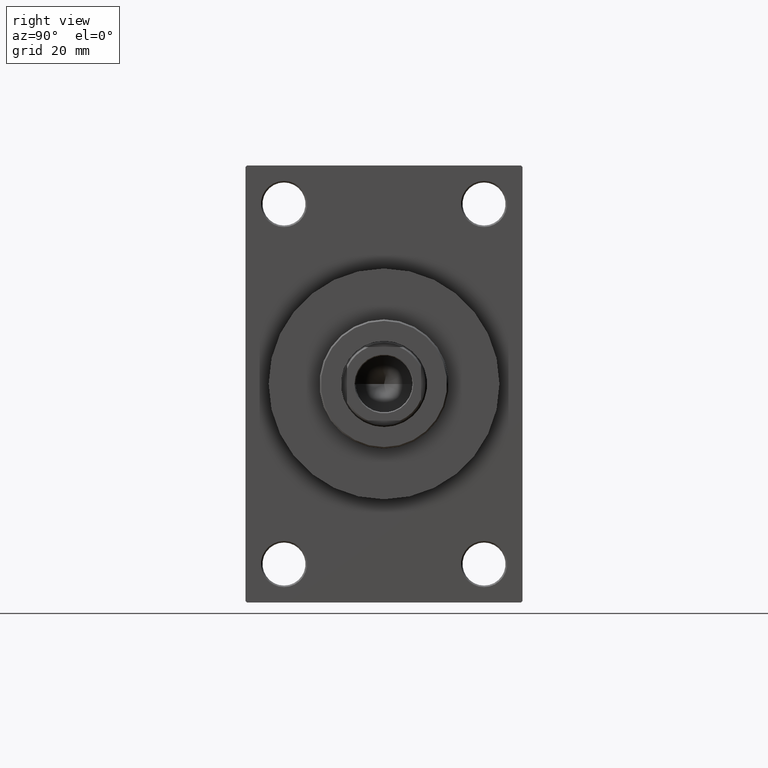
[diagram: clean part render]
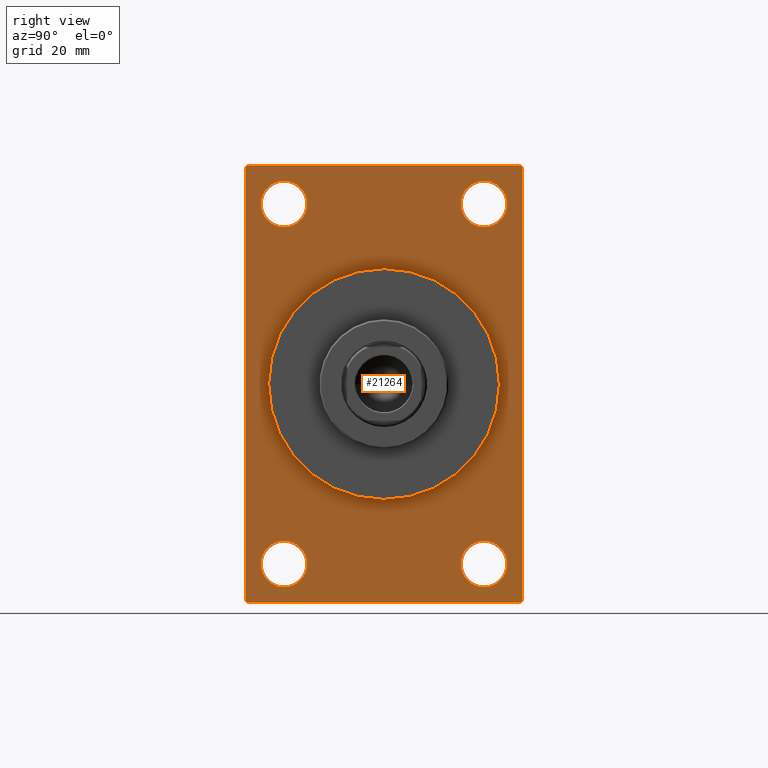
[diagram: same view with one face highlighted and labeled with its STEP entity id]
A machine part, right view. The second image highlights one B-rep face of the part: STEP entity #21264.
In plain terms, the highlighted planar face has unit normal (-1, 0, 0).
Its self-contained STEP definition (entity closure, byte-faithful):
#197 = CARTESIAN_POINT ( 'NONE',  ( 124.9999999999999858, 32.50000000000000711, 51.00000000000001421 ) ) ;
#377 = DIRECTION ( 'NONE',  ( -1.000000000000000000, 0.000000000000000000, -0.000000000000000000 ) ) ;
#441 = EDGE_LOOP ( 'NONE', ( #15976, #28435 ) ) ;
#1113 = CARTESIAN_POINT ( 'NONE',  ( 124.9999999999999858, -32.50000000000000000, 66.00000000000000000 ) ) ;
#1210 = DIRECTION ( 'NONE',  ( 0.000000000000000000, 0.7071067811865573427, -0.7071067811865378028 ) ) ;
#1604 = EDGE_CURVE ( 'NONE', #3583, #33139, #2162, .T. ) ;
#1955 = VERTEX_POINT ( 'NONE', #34677 ) ;
#2007 = CIRCLE ( 'NONE', #21795, 7.500000000000007105 ) ;
#2046 = EDGE_CURVE ( 'NONE', #37515, #15705, #17482, .T. ) ;
#2162 = LINE ( 'NONE', #42720, #20921 ) ;
#3372 = CARTESIAN_POINT ( 'NONE',  ( 124.9999999999999858, -32.50000000000000000, -65.99999999999998579 ) ) ;
#3583 = VERTEX_POINT ( 'NONE', #25275 ) ;
#3589 = VERTEX_POINT ( 'NONE', #7106 ) ;
#3722 = CIRCLE ( 'NONE', #44132, 7.499999999999992895 ) ;
#4043 = ORIENTED_EDGE ( 'NONE', *, *, #46838, .T. ) ;
#4421 = DIRECTION ( 'NONE',  ( -1.000000000000000000, 0.000000000000000000, -0.000000000000000000 ) ) ;
#5530 = VERTEX_POINT ( 'NONE', #40240 ) ;
#5593 = EDGE_CURVE ( 'NONE', #37727, #5530, #36242, .T. ) ;
#5803 = AXIS2_PLACEMENT_3D ( 'NONE', #30036, #33621, #25121 ) ;
#5945 = FACE_BOUND ( 'NONE', #45765, .T. ) ;
#6018 = DIRECTION ( 'NONE',  ( 0.000000000000000000, 0.000000000000000000, 1.000000000000000000 ) ) ;
#6409 = CARTESIAN_POINT ( 'NONE',  ( 124.9999999999999858, 32.50000000000000711, -50.99999999999999289 ) ) ;
#6410 = DIRECTION ( 'NONE',  ( -0.000000000000000000, 0.000000000000000000, 1.000000000000000000 ) ) ;
#6806 = EDGE_CURVE ( 'NONE', #5530, #37727, #2007, .T. ) ;
#7106 = CARTESIAN_POINT ( 'NONE',  ( 124.9999999999999858, -44.49999999999994316, -71.00000000000000000 ) ) ;
#7279 = VECTOR ( 'NONE', #19058, 1000.000000000000000 ) ;
#7764 = DIRECTION ( 'NONE',  ( -1.000000000000000000, 0.000000000000000000, -0.000000000000000000 ) ) ;
#8214 = ORIENTED_EDGE ( 'NONE', *, *, #17413, .T. ) ;
#8886 = ORIENTED_EDGE ( 'NONE', *, *, #44666, .T. ) ;
#9460 = VECTOR ( 'NONE', #38734, 1000.000000000000000 ) ;
#10017 = DIRECTION ( 'NONE',  ( 0.000000000000000000, -1.000000000000000000, -1.541976423090495387E-16 ) ) ;
#10230 = DIRECTION ( 'NONE',  ( -1.000000000000000000, 0.000000000000000000, -0.000000000000000000 ) ) ;
#11376 = DIRECTION ( 'NONE',  ( 1.000000000000000000, 0.000000000000000000, 0.000000000000000000 ) ) ;
#12318 = EDGE_LOOP ( 'NONE', ( #27314, #30246 ) ) ;
#13615 = AXIS2_PLACEMENT_3D ( 'NONE', #44791, #11376, #15201 ) ;
#14144 = CIRCLE ( 'NONE', #46934, 7.499999999999992895 ) ;
#14183 = CIRCLE ( 'NONE', #5803, 7.499999999999992895 ) ;
#14393 = CIRCLE ( 'NONE', #13615, 37.50000000000000711 ) ;
#15174 = CIRCLE ( 'NONE', #35020, 7.500000000000000000 ) ;
#15201 = DIRECTION ( 'NONE',  ( 0.000000000000000000, 0.000000000000000000, -1.000000000000000000 ) ) ;
#15482 = LINE ( 'NONE', #35855, #7279 ) ;
#15705 = VERTEX_POINT ( 'NONE', #31392 ) ;
#15976 = ORIENTED_EDGE ( 'NONE', *, *, #41677, .T. ) ;
#16054 = VERTEX_POINT ( 'NONE', #40368 ) ;
#16440 = EDGE_CURVE ( 'NONE', #26503, #44443, #14393, .T. ) ;
#16458 = VERTEX_POINT ( 'NONE', #1113 ) ;
#17158 = CARTESIAN_POINT ( 'NONE',  ( 124.9999999999999858, 0.000000000000000000, 0.000000000000000000 ) ) ;
#17378 = CARTESIAN_POINT ( 'NONE',  ( 124.9999999999999858, 32.50000000000000711, 66.00000000000000000 ) ) ;
#17413 = EDGE_CURVE ( 'NONE', #39822, #29190, #15174, .T. ) ;
#17482 = LINE ( 'NONE', #39197, #9460 ) ;
#17558 = ORIENTED_EDGE ( 'NONE', *, *, #44482, .T. ) ;
#17964 = EDGE_CURVE ( 'NONE', #1955, #16458, #3722, .T. ) ;
#18254 = ORIENTED_EDGE ( 'NONE', *, *, #6806, .T. ) ;
#18715 = DIRECTION ( 'NONE',  ( 0.000000000000000000, -4.886545002751570165E-17, -1.000000000000000000 ) ) ;
#18754 = DIRECTION ( 'NONE',  ( 0.000000000000000000, 0.000000000000000000, 1.000000000000000000 ) ) ;
#18842 = CIRCLE ( 'NONE', #38692, 7.499999999999992895 ) ;
#19058 = DIRECTION ( 'NONE',  ( 0.000000000000000000, -1.000000000000000000, -1.541976423090495633E-16 ) ) ;
#19327 = CARTESIAN_POINT ( 'NONE',  ( 124.9999999999999858, -32.50000000000000000, -50.99999999999998579 ) ) ;
#20513 = FACE_BOUND ( 'NONE', #441, .T. ) ;
#20921 = VECTOR ( 'NONE', #10017, 1000.000000000000000 ) ;
#21257 = CARTESIAN_POINT ( 'NONE',  ( 124.9999999999999858, 45.00000000000001421, -70.50000000000001421 ) ) ;
#21264 = ADVANCED_FACE ( 'NONE', ( #24096, #31706, #5945, #20513, #31474, #42453 ), #24329, .F. ) ;
#21425 = CIRCLE ( 'NONE', #46574, 37.50000000000000711 ) ;
#21795 = AXIS2_PLACEMENT_3D ( 'NONE', #36769, #22226, #44655 ) ;
#22122 = LINE ( 'NONE', #32623, #29575 ) ;
#22195 = DIRECTION ( 'NONE',  ( 0.000000000000000000, 0.000000000000000000, 1.000000000000000000 ) ) ;
#22226 = DIRECTION ( 'NONE',  ( -1.000000000000000000, 0.000000000000000000, -0.000000000000000000 ) ) ;
#22305 = CARTESIAN_POINT ( 'NONE',  ( 124.9999999999999858, 45.00000000000002132, 71.00000000000000000 ) ) ;
#23069 = CARTESIAN_POINT ( 'NONE',  ( 124.9999999999999858, 0.000000000000000000, 37.50000000000000711 ) ) ;
#23436 = DIRECTION ( 'NONE',  ( 1.000000000000000000, 0.000000000000000000, 0.000000000000000000 ) ) ;
#23636 = VERTEX_POINT ( 'NONE', #17378 ) ;
#23660 = CARTESIAN_POINT ( 'NONE',  ( 124.9999999999999858, -44.49999999999997158, -71.00000000000000000 ) ) ;
#24096 = FACE_BOUND ( 'NONE', #37765, .T. ) ;
#24109 = DIRECTION ( 'NONE',  ( 0.000000000000000000, 0.000000000000000000, 1.000000000000000000 ) ) ;
#24227 = ORIENTED_EDGE ( 'NONE', *, *, #2046, .T. ) ;
#24329 = PLANE ( 'NONE',  #35803 ) ;
#24774 = DIRECTION ( 'NONE',  ( 0.000000000000000000, -0.7071067811865474617, 0.7071067811865474617 ) ) ;
#25121 = DIRECTION ( 'NONE',  ( 0.000000000000000000, 0.000000000000000000, 1.000000000000000000 ) ) ;
#25275 = CARTESIAN_POINT ( 'NONE',  ( 124.9999999999999858, 44.50000000000002132, 71.00000000000000000 ) ) ;
#25308 = LINE ( 'NONE', #21257, #31054 ) ;
#25540 = CARTESIAN_POINT ( 'NONE',  ( 124.9999999999999858, -32.50000000000000000, -58.49999999999999289 ) ) ;
#25562 = VERTEX_POINT ( 'NONE', #32554 ) ;
#26406 = CARTESIAN_POINT ( 'NONE',  ( 124.9999999999999858, -32.50000000000000000, 58.50000000000000711 ) ) ;
#26503 = VERTEX_POINT ( 'NONE', #23069 ) ;
#26794 = ORIENTED_EDGE ( 'NONE', *, *, #5593, .T. ) ;
#26894 = EDGE_CURVE ( 'NONE', #44443, #26503, #21425, .T. ) ;
#27236 = VERTEX_POINT ( 'NONE', #36448 ) ;
#27314 = ORIENTED_EDGE ( 'NONE', *, *, #16440, .F. ) ;
#27738 = ORIENTED_EDGE ( 'NONE', *, *, #1604, .T. ) ;
#27750 = CIRCLE ( 'NONE', #46045, 7.500000000000000000 ) ;
#28138 = DIRECTION ( 'NONE',  ( -1.000000000000000000, 0.000000000000000000, -0.000000000000000000 ) ) ;
#28435 = ORIENTED_EDGE ( 'NONE', *, *, #40400, .T. ) ;
#28502 = ORIENTED_EDGE ( 'NONE', *, *, #37170, .F. ) ;
#28532 = VECTOR ( 'NONE', #18715, 1000.000000000000000 ) ;
#29190 = VERTEX_POINT ( 'NONE', #3372 ) ;
#29295 = EDGE_CURVE ( 'NONE', #15705, #3589, #44649, .T. ) ;
#29575 = VECTOR ( 'NONE', #24774, 1000.000000000000114 ) ;
#30036 = CARTESIAN_POINT ( 'NONE',  ( 124.9999999999999858, 32.50000000000000711, 58.50000000000000711 ) ) ;
#30071 = ORIENTED_EDGE ( 'NONE', *, *, #41616, .F. ) ;
#30187 = ORIENTED_EDGE ( 'NONE', *, *, #17964, .T. ) ;
#30246 = ORIENTED_EDGE ( 'NONE', *, *, #26894, .F. ) ;
#30270 = CARTESIAN_POINT ( 'NONE',  ( 124.9999999999999858, -44.50000000000000711, 70.99999999999998579 ) ) ;
#30810 = CARTESIAN_POINT ( 'NONE',  ( 124.9999999999999858, 0.000000000000000000, 0.000000000000000000 ) ) ;
#31054 = VECTOR ( 'NONE', #31992, 999.9999999999998863 ) ;
#31392 = CARTESIAN_POINT ( 'NONE',  ( 124.9999999999999858, -44.99999999999997158, -70.50000000000000000 ) ) ;
#31474 = FACE_BOUND ( 'NONE', #12318, .T. ) ;
#31706 = FACE_BOUND ( 'NONE', #33819, .T. ) ;
#31992 = DIRECTION ( 'NONE',  ( -0.000000000000000000, 0.7071067811865574537, 0.7071067811865376918 ) ) ;
#32040 = CARTESIAN_POINT ( 'NONE',  ( 124.9999999999999858, -44.99999999999997158, 70.50000000000000000 ) ) ;
#32224 = DIRECTION ( 'NONE',  ( -1.000000000000000000, 0.000000000000000000, -0.000000000000000000 ) ) ;
#32462 = CARTESIAN_POINT ( 'NONE',  ( 124.9999999999999858, -44.99999999999997158, 70.50000000000000000 ) ) ;
#32554 = CARTESIAN_POINT ( 'NONE',  ( 124.9999999999999858, 44.50000000000004263, -70.99999999999998579 ) ) ;
#32623 = CARTESIAN_POINT ( 'NONE',  ( 124.9999999999999858, 44.50000000000002132, 71.00000000000000000 ) ) ;
#33139 = VERTEX_POINT ( 'NONE', #30270 ) ;
#33621 = DIRECTION ( 'NONE',  ( -1.000000000000000000, 0.000000000000000000, -0.000000000000000000 ) ) ;
#33819 = EDGE_LOOP ( 'NONE', ( #38235, #8214 ) ) ;
#33961 = AXIS2_PLACEMENT_3D ( 'NONE', #41189, #7764, #18754 ) ;
#34056 = ORIENTED_EDGE ( 'NONE', *, *, #29295, .T. ) ;
#34677 = CARTESIAN_POINT ( 'NONE',  ( 124.9999999999999858, -32.50000000000000000, 51.00000000000001421 ) ) ;
#35020 = AXIS2_PLACEMENT_3D ( 'NONE', #42101, #41869, #38523 ) ;
#35803 = AXIS2_PLACEMENT_3D ( 'NONE', #17158, #28138, #6410 ) ;
#35855 = CARTESIAN_POINT ( 'NONE',  ( 124.9999999999999858, 45.00000000000001421, -70.99999999999998579 ) ) ;
#36242 = CIRCLE ( 'NONE', #33961, 7.500000000000007105 ) ;
#36448 = CARTESIAN_POINT ( 'NONE',  ( 124.9999999999999858, 45.00000000000002132, 70.50000000000000000 ) ) ;
#36769 = CARTESIAN_POINT ( 'NONE',  ( 124.9999999999999858, 32.50000000000000711, -58.50000000000000000 ) ) ;
#36879 = DIRECTION ( 'NONE',  ( 0.000000000000000000, 0.000000000000000000, 1.000000000000000000 ) ) ;
#37170 = EDGE_CURVE ( 'NONE', #27236, #16054, #39969, .T. ) ;
#37462 = EDGE_CURVE ( 'NONE', #29190, #39822, #27750, .T. ) ;
#37515 = VERTEX_POINT ( 'NONE', #32462 ) ;
#37727 = VERTEX_POINT ( 'NONE', #6409 ) ;
#37765 = EDGE_LOOP ( 'NONE', ( #30187, #47110 ) ) ;
#38143 = EDGE_LOOP ( 'NONE', ( #24227, #34056, #30071, #8886, #28502, #4043, #27738, #17558 ) ) ;
#38213 = DIRECTION ( 'NONE',  ( 0.000000000000000000, 0.000000000000000000, -1.000000000000000000 ) ) ;
#38235 = ORIENTED_EDGE ( 'NONE', *, *, #37462, .T. ) ;
#38523 = DIRECTION ( 'NONE',  ( 0.000000000000000000, 0.000000000000000000, 1.000000000000000000 ) ) ;
#38692 = AXIS2_PLACEMENT_3D ( 'NONE', #26406, #377, #36879 ) ;
#38734 = DIRECTION ( 'NONE',  ( 0.000000000000000000, 0.000000000000000000, -1.000000000000000000 ) ) ;
#39197 = CARTESIAN_POINT ( 'NONE',  ( 124.9999999999999858, -44.99999999999997158, 70.99999999999998579 ) ) ;
#39202 = LINE ( 'NONE', #32040, #46288 ) ;
#39669 = CARTESIAN_POINT ( 'NONE',  ( 124.9999999999999858, 4.592425496802575156E-15, -37.50000000000000711 ) ) ;
#39822 = VERTEX_POINT ( 'NONE', #19327 ) ;
#39969 = LINE ( 'NONE', #22305, #28532 ) ;
#39978 = VERTEX_POINT ( 'NONE', #197 ) ;
#40240 = CARTESIAN_POINT ( 'NONE',  ( 124.9999999999999858, 32.50000000000000711, -66.00000000000000000 ) ) ;
#40368 = CARTESIAN_POINT ( 'NONE',  ( 124.9999999999999858, 45.00000000000001421, -70.50000000000001421 ) ) ;
#40400 = EDGE_CURVE ( 'NONE', #23636, #39978, #14144, .T. ) ;
#40932 = CARTESIAN_POINT ( 'NONE',  ( 124.9999999999999858, 32.50000000000000711, 58.50000000000000711 ) ) ;
#41189 = CARTESIAN_POINT ( 'NONE',  ( 124.9999999999999858, 32.50000000000000711, -58.50000000000000000 ) ) ;
#41340 = VECTOR ( 'NONE', #1210, 1000.000000000000000 ) ;
#41616 = EDGE_CURVE ( 'NONE', #25562, #3589, #15482, .T. ) ;
#41677 = EDGE_CURVE ( 'NONE', #39978, #23636, #14183, .T. ) ;
#41869 = DIRECTION ( 'NONE',  ( -1.000000000000000000, 0.000000000000000000, -0.000000000000000000 ) ) ;
#42101 = CARTESIAN_POINT ( 'NONE',  ( 124.9999999999999858, -32.50000000000000000, -58.49999999999999289 ) ) ;
#42453 = FACE_OUTER_BOUND ( 'NONE', #38143, .T. ) ;
#42720 = CARTESIAN_POINT ( 'NONE',  ( 124.9999999999999858, 45.00000000000002132, 71.00000000000000000 ) ) ;
#42927 = CARTESIAN_POINT ( 'NONE',  ( 124.9999999999999858, -32.50000000000000000, 58.50000000000000711 ) ) ;
#44132 = AXIS2_PLACEMENT_3D ( 'NONE', #42927, #10230, #24109 ) ;
#44443 = VERTEX_POINT ( 'NONE', #39669 ) ;
#44482 = EDGE_CURVE ( 'NONE', #33139, #37515, #39202, .T. ) ;
#44649 = LINE ( 'NONE', #23660, #41340 ) ;
#44655 = DIRECTION ( 'NONE',  ( 0.000000000000000000, 0.000000000000000000, 1.000000000000000000 ) ) ;
#44666 = EDGE_CURVE ( 'NONE', #25562, #16054, #25308, .T. ) ;
#44791 = CARTESIAN_POINT ( 'NONE',  ( 124.9999999999999858, 0.000000000000000000, 0.000000000000000000 ) ) ;
#45373 = EDGE_CURVE ( 'NONE', #16458, #1955, #18842, .T. ) ;
#45765 = EDGE_LOOP ( 'NONE', ( #18254, #26794 ) ) ;
#46045 = AXIS2_PLACEMENT_3D ( 'NONE', #25540, #32224, #22195 ) ;
#46288 = VECTOR ( 'NONE', #47082, 1000.000000000000000 ) ;
#46574 = AXIS2_PLACEMENT_3D ( 'NONE', #30810, #23436, #38213 ) ;
#46838 = EDGE_CURVE ( 'NONE', #27236, #3583, #22122, .T. ) ;
#46934 = AXIS2_PLACEMENT_3D ( 'NONE', #40932, #4421, #6018 ) ;
#47082 = DIRECTION ( 'NONE',  ( -0.000000000000000000, -0.7071067811865230368, -0.7071067811865721087 ) ) ;
#47110 = ORIENTED_EDGE ( 'NONE', *, *, #45373, .T. ) ;